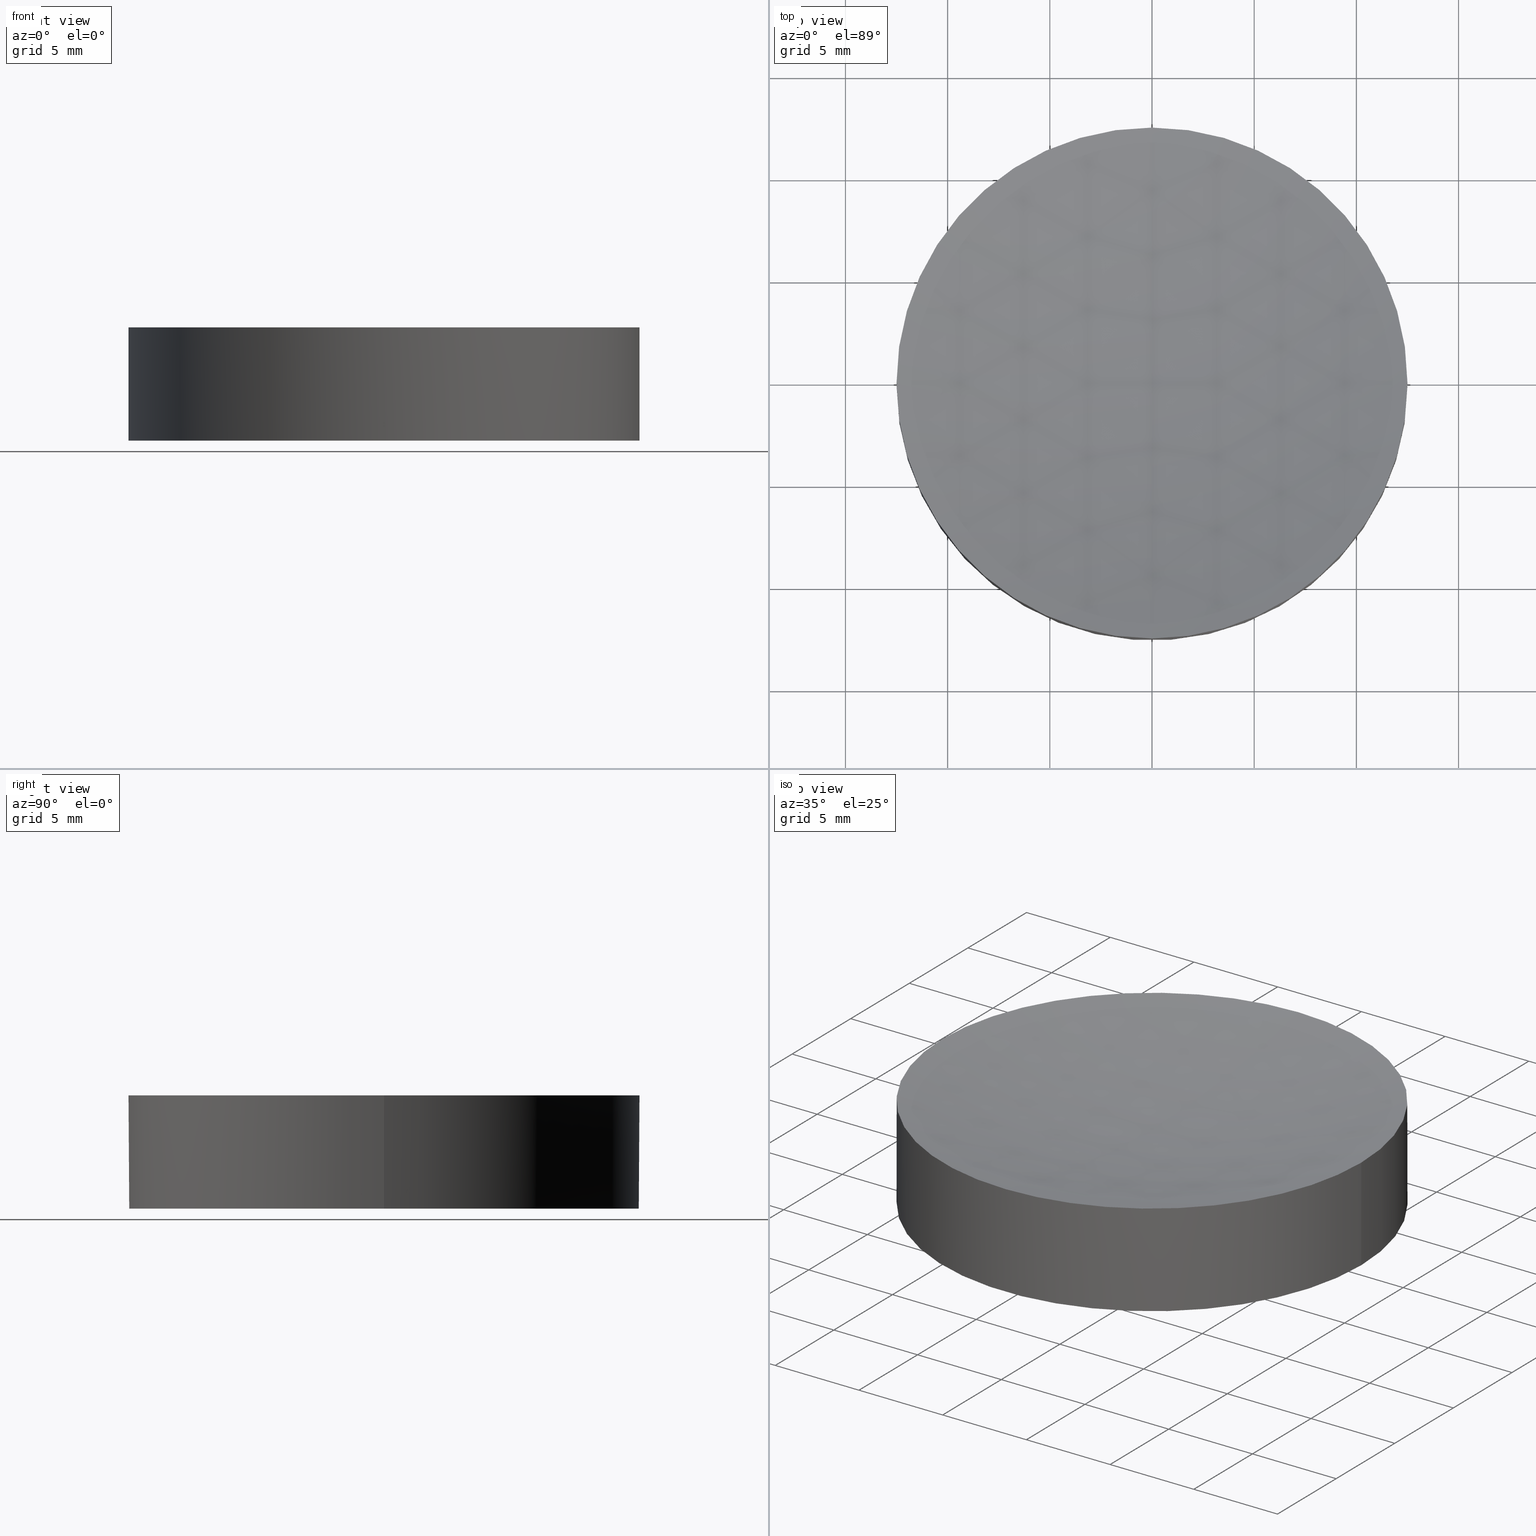
[diagram: canonical four-view strip — front | top / right | iso, engineering-drawing reading convention]
A machine part, canonical four-view strip (front | top / right | iso — engineering-drawing reading convention). The complete STEP part file that produces these views, byte-faithful:
ISO-10303-21;
HEADER;
FILE_DESCRIPTION (( 'STEP AP214' ),
    '1' );
FILE_NAME ('19069-E0W.STEP',
    '2009-12-21T17:09:12',
    ( ' ' ),
    ( ' ' ),
    'SwSTEP 2.0',
    'SolidWorks 2009',
    '' );
FILE_SCHEMA (( 'AUTOMOTIVE_DESIGN' ));
ENDSEC;

DATA;
#1 = AXIS2_PLACEMENT_3D ( 'NONE', #5, #7, #8 ) ;
#2 = CIRCLE ( 'NONE', #3, 12.50000000000000000 ) ;
#3 = AXIS2_PLACEMENT_3D ( 'NONE', #10, #6, #9 ) ;
#4 = CIRCLE ( 'NONE', #1, 51.50000000000000700 ) ;
#5 = CARTESIAN_POINT ( 'NONE',  ( 0.0000000000000000000, 0.0000000000000000000, 52.72999199359360000 ) ) ;
#6 = DIRECTION ( 'NONE',  ( -0.0000000000000000000, -0.0000000000000000000, 1.000000000000000000 ) ) ;
#7 = DIRECTION ( 'NONE',  ( 1.000000000000000000, 0.0000000000000000000, 0.0000000000000000000 ) ) ;
#8 = DIRECTION ( 'NONE',  ( 0.0000000000000000000, 0.0000000000000000000, -1.000000000000000000 ) ) ;
#9 = DIRECTION ( 'NONE',  ( 1.000000000000000000, 0.0000000000000000000, 0.0000000000000000000 ) ) ;
#10 = CARTESIAN_POINT ( 'NONE',  ( 0.0000000000000000000, 0.0000000000000000000, 2.770008006406406800 ) ) ;
#11 = CARTESIAN_POINT ( 'NONE',  ( 0.0000000000000000000, 3.153361361092621800E-015, 1.229991993593595900 ) ) ;
#12 = CARTESIAN_POINT ( 'NONE',  ( -1.530757942277970800E-015, -12.49999999999999300, 2.770008006406407200 ) ) ;
#13 = DIRECTION ( 'NONE',  ( -1.000000000000000000, 1.224606353822377300E-016, 0.0000000000000000000 ) ) ;
#14 = AXIS2_PLACEMENT_3D ( 'NONE', #16, #17, #18 ) ;
#15 = DIRECTION ( 'NONE',  ( -1.224606353822377300E-016, -1.000000000000000000, 0.0000000000000000000 ) ) ;
#16 = CARTESIAN_POINT ( 'NONE',  ( 0.0000000000000000000, 0.0000000000000000000, -2.770008006406406800 ) ) ;
#17 = DIRECTION ( 'NONE',  ( -0.0000000000000000000, -0.0000000000000000000, 1.000000000000000000 ) ) ;
#18 = DIRECTION ( 'NONE',  ( 1.000000000000000000, 0.0000000000000000000, 0.0000000000000000000 ) ) ;
#19 = SURFACE_STYLE_USAGE ( .BOTH. , #20 ) ;
#20 = SURFACE_SIDE_STYLE ('',( #30 ) ) ;
#21 = STYLED_ITEM ( 'NONE', ( #22 ), #230 ) ;
#22 = PRESENTATION_STYLE_ASSIGNMENT (( #19 ) ) ;
#23 = CIRCLE ( 'NONE', #14, 12.50000000000000000 ) ;
#24 = PRESENTATION_LAYER_ASSIGNMENT (  '', '', ( #21 ) ) ;
#25 = MECHANICAL_DESIGN_GEOMETRIC_PRESENTATION_REPRESENTATION (  '', ( #21 ), #35 ) ;
#26 =( LENGTH_UNIT ( ) NAMED_UNIT ( * ) SI_UNIT ( .MILLI., .METRE. ) );
#27 =( NAMED_UNIT ( * ) PLANE_ANGLE_UNIT ( ) SI_UNIT ( $, .RADIAN. ) );
#28 = FILL_AREA_STYLE_COLOUR ( '', #32 ) ;
#29 = FILL_AREA_STYLE ('',( #28 ) ) ;
#30 = SURFACE_STYLE_FILL_AREA ( #29 ) ;
#31 =( NAMED_UNIT ( * ) SI_UNIT ( $, .STERADIAN. ) SOLID_ANGLE_UNIT ( ) );
#32 = COLOUR_RGB ( '',0.9568627450980391500, 0.9490196078431372100, 0.9607843137254902200 ) ;
#33 = FACE_OUTER_BOUND ( 'NONE', #249, .T. ) ;
#34 = UNCERTAINTY_MEASURE_WITH_UNIT (LENGTH_MEASURE( 1.000000000000000100E-005 ), #26, 'distance_accuracy_value', 'NONE');
#35 =( GEOMETRIC_REPRESENTATION_CONTEXT ( 3 ) GLOBAL_UNCERTAINTY_ASSIGNED_CONTEXT ( ( #34 ) ) GLOBAL_UNIT_ASSIGNED_CONTEXT ( ( #26, #27, #31 ) ) REPRESENTATION_CONTEXT ( 'NONE', 'WORKASPACE' ) );
#36 = DIRECTION ( 'NONE',  ( -0.0000000000000000000, -0.0000000000000000000, 1.000000000000000000 ) ) ;
#37 = CARTESIAN_POINT ( 'NONE',  ( 0.0000000000000000000, 0.0000000000000000000, 52.72999199359360000 ) ) ;
#38 = AXIS2_PLACEMENT_3D ( 'NONE', #37, #13, #15 ) ;
#39 = CIRCLE ( 'NONE', #38, 51.50000000000000700 ) ;
#40 = CARTESIAN_POINT ( 'NONE',  ( 12.50000000000000000, 0.0000000000000000000, 8.247145264022918800 ) ) ;
#41 = VECTOR ( 'NONE', #36, 1000.000000000000000 ) ;
#42 = LINE ( 'NONE', #40, #41 ) ;
#43 = UNCERTAINTY_MEASURE_WITH_UNIT (LENGTH_MEASURE( 1.000000000000000100E-005 ), #86, 'distance_accuracy_value', 'NONE');
#44 =( GEOMETRIC_REPRESENTATION_CONTEXT ( 3 ) GLOBAL_UNCERTAINTY_ASSIGNED_CONTEXT ( ( #210 ) ) GLOBAL_UNIT_ASSIGNED_CONTEXT ( ( #180, #179, #211 ) ) REPRESENTATION_CONTEXT ( 'NONE', 'WORKASPACE' ) );
#45 = AXIS2_PLACEMENT_3D ( 'NONE', #64, #47, #49 ) ;
#46 = PRODUCT_DEFINITION_FORMATION_WITH_SPECIFIED_SOURCE ( 'ANY', '', #61, .NOT_KNOWN. ) ;
#47 = DIRECTION ( 'NONE',  ( -1.000000000000000000, 0.0000000000000000000, 0.0000000000000000000 ) ) ;
#48 = PRODUCT_RELATED_PRODUCT_CATEGORY ( 'part', '', ( #61 ) ) ;
#49 = DIRECTION ( 'NONE',  ( 0.0000000000000000000, 1.000000000000000000, 0.0000000000000000000 ) ) ;
#50 = PRODUCT_DEFINITION ( 'UNKNOWN', '', #46, #63 ) ;
#51 = SPHERICAL_SURFACE ( 'NONE', #45, 51.50000000000000700 ) ;
#52 = CARTESIAN_POINT ( 'NONE',  ( 0.0000000000000000000, 0.0000000000000000000, 2.770008006406406800 ) ) ;
#53 = APPLICATION_CONTEXT ( 'automotive_design' ) ;
#54 = APPLICATION_CONTEXT ( 'automotive_design' ) ;
#55 = APPLICATION_PROTOCOL_DEFINITION ( 'draft international standard', 'automotive_design', 1998, #54 ) ;
#56 =( GEOMETRIC_REPRESENTATION_CONTEXT ( 3 ) GLOBAL_UNCERTAINTY_ASSIGNED_CONTEXT ( ( #43 ) ) GLOBAL_UNIT_ASSIGNED_CONTEXT ( ( #86, #85, #84 ) ) REPRESENTATION_CONTEXT ( 'NONE', 'WORKASPACE' ) );
#57 = APPLICATION_PROTOCOL_DEFINITION ( 'draft international standard', 'automotive_design', 1998, #53 ) ;
#58 = DIRECTION ( 'NONE',  ( 1.000000000000000000, 0.0000000000000000000, 0.0000000000000000000 ) ) ;
#59 = DIRECTION ( 'NONE',  ( -0.0000000000000000000, -0.0000000000000000000, 1.000000000000000000 ) ) ;
#60 = CIRCLE ( 'NONE', #65, 12.50000000000000000 ) ;
#61 = PRODUCT ( '19069-E0W', '19069-E0W', '', ( #62 ) ) ;
#62 = PRODUCT_CONTEXT ( 'NONE', #53, 'mechanical' ) ;
#63 = PRODUCT_DEFINITION_CONTEXT ( 'detailed design', #54, 'design' ) ;
#64 = CARTESIAN_POINT ( 'NONE',  ( 0.0000000000000000000, 0.0000000000000000000, 52.72999199359360000 ) ) ;
#65 = AXIS2_PLACEMENT_3D ( 'NONE', #52, #59, #58 ) ;
#66 = FILL_AREA_STYLE ('',( #116 ) ) ;
#67 = STYLED_ITEM ( 'NONE', ( #68 ), #259 ) ;
#68 = PRESENTATION_STYLE_ASSIGNMENT (( #69 ) ) ;
#69 = SURFACE_STYLE_USAGE ( .BOTH. , #70 ) ;
#70 = SURFACE_SIDE_STYLE ('',( #71 ) ) ;
#71 = SURFACE_STYLE_FILL_AREA ( #72 ) ;
#72 = FILL_AREA_STYLE ('',( #73 ) ) ;
#73 = FILL_AREA_STYLE_COLOUR ( '', #113 ) ;
#74 = STYLED_ITEM ( 'NONE', ( #75 ), #255 ) ;
#75 = PRESENTATION_STYLE_ASSIGNMENT (( #98 ) ) ;
#76 = COLOUR_RGB ( '',0.9568627450980391500, 0.9490196078431372100, 0.9607843137254902200 ) ;
#77 =( LENGTH_UNIT ( ) NAMED_UNIT ( * ) SI_UNIT ( .MILLI., .METRE. ) );
#78 = CYLINDRICAL_SURFACE ( 'NONE', #119, 12.50000000000000000 ) ;
#79 = PRESENTATION_LAYER_ASSIGNMENT (  '', '', ( #95 ) ) ;
#80 = SURFACE_STYLE_USAGE ( .BOTH. , #89 ) ;
#81 = AXIS2_PLACEMENT_3D ( 'NONE', #104, #117, #109 ) ;
#82 =( NAMED_UNIT ( * ) PLANE_ANGLE_UNIT ( ) SI_UNIT ( $, .RADIAN. ) );
#83 =( GEOMETRIC_REPRESENTATION_CONTEXT ( 3 ) GLOBAL_UNCERTAINTY_ASSIGNED_CONTEXT ( ( #93 ) ) GLOBAL_UNIT_ASSIGNED_CONTEXT ( ( #96, #115, #107 ) ) REPRESENTATION_CONTEXT ( 'NONE', 'WORKASPACE' ) );
#84 =( NAMED_UNIT ( * ) SI_UNIT ( $, .STERADIAN. ) SOLID_ANGLE_UNIT ( ) );
#85 =( NAMED_UNIT ( * ) PLANE_ANGLE_UNIT ( ) SI_UNIT ( $, .RADIAN. ) );
#86 =( LENGTH_UNIT ( ) NAMED_UNIT ( * ) SI_UNIT ( .MILLI., .METRE. ) );
#87 = MECHANICAL_DESIGN_GEOMETRIC_PRESENTATION_REPRESENTATION (  '', ( #67 ), #56 ) ;
#88 = PRESENTATION_LAYER_ASSIGNMENT (  '', '', ( #67 ) ) ;
#89 = SURFACE_SIDE_STYLE ('',( #106 ) ) ;
#90 = MECHANICAL_DESIGN_GEOMETRIC_PRESENTATION_REPRESENTATION (  '', ( #74 ), #94 ) ;
#91 = PRESENTATION_LAYER_ASSIGNMENT (  '', '', ( #74 ) ) ;
#92 = DIRECTION ( 'NONE',  ( -0.0000000000000000000, -0.0000000000000000000, 1.000000000000000000 ) ) ;
#93 = UNCERTAINTY_MEASURE_WITH_UNIT (LENGTH_MEASURE( 1.000000000000000100E-005 ), #96, 'distance_accuracy_value', 'NONE');
#94 =( GEOMETRIC_REPRESENTATION_CONTEXT ( 3 ) GLOBAL_UNCERTAINTY_ASSIGNED_CONTEXT ( ( #103 ) ) GLOBAL_UNIT_ASSIGNED_CONTEXT ( ( #77, #82, #102 ) ) REPRESENTATION_CONTEXT ( 'NONE', 'WORKASPACE' ) );
#95 = STYLED_ITEM ( 'NONE', ( #105 ), #253 ) ;
#96 =( LENGTH_UNIT ( ) NAMED_UNIT ( * ) SI_UNIT ( .MILLI., .METRE. ) );
#97 = COLOUR_RGB ( '',0.9568627450980391500, 0.9490196078431372100, 0.9607843137254902200 ) ;
#98 = SURFACE_STYLE_USAGE ( .BOTH. , #99 ) ;
#99 = SURFACE_SIDE_STYLE ('',( #121 ) ) ;
#100 = FACE_OUTER_BOUND ( 'NONE', #232, .T. ) ;
#101 = PLANE ( 'NONE',  #81 ) ;
#102 =( NAMED_UNIT ( * ) SI_UNIT ( $, .STERADIAN. ) SOLID_ANGLE_UNIT ( ) );
#103 = UNCERTAINTY_MEASURE_WITH_UNIT (LENGTH_MEASURE( 1.000000000000000100E-005 ), #77, 'distance_accuracy_value', 'NONE');
#104 = CARTESIAN_POINT ( 'NONE',  ( 0.0000000000000000000, 7.347880794884119700E-016, -2.770008006406406800 ) ) ;
#105 = PRESENTATION_STYLE_ASSIGNMENT (( #80 ) ) ;
#106 = SURFACE_STYLE_FILL_AREA ( #66 ) ;
#107 =( NAMED_UNIT ( * ) SI_UNIT ( $, .STERADIAN. ) SOLID_ANGLE_UNIT ( ) );
#108 = FILL_AREA_STYLE ('',( #120 ) ) ;
#109 = DIRECTION ( 'NONE',  ( 1.000000000000000000, 0.0000000000000000000, 0.0000000000000000000 ) ) ;
#110 = MECHANICAL_DESIGN_GEOMETRIC_PRESENTATION_REPRESENTATION (  '', ( #95 ), #83 ) ;
#111 = CARTESIAN_POINT ( 'NONE',  ( 12.50000000000000000, 0.0000000000000000000, -2.770008006406406800 ) ) ;
#112 = DIRECTION ( 'NONE',  ( 1.000000000000000000, 0.0000000000000000000, 0.0000000000000000000 ) ) ;
#113 = COLOUR_RGB ( '',0.9568627450980391500, 0.9490196078431372100, 0.9607843137254902200 ) ;
#114 = FACE_OUTER_BOUND ( 'NONE', #219, .T. ) ;
#115 =( NAMED_UNIT ( * ) PLANE_ANGLE_UNIT ( ) SI_UNIT ( $, .RADIAN. ) );
#116 = FILL_AREA_STYLE_COLOUR ( '', #97 ) ;
#117 = DIRECTION ( 'NONE',  ( 0.0000000000000000000, -0.0000000000000000000, 1.000000000000000000 ) ) ;
#118 = CARTESIAN_POINT ( 'NONE',  ( 0.0000000000000000000, 0.0000000000000000000, 8.247145264022918800 ) ) ;
#119 = AXIS2_PLACEMENT_3D ( 'NONE', #118, #92, #112 ) ;
#120 = FILL_AREA_STYLE_COLOUR ( '', #76 ) ;
#121 = SURFACE_STYLE_FILL_AREA ( #108 ) ;
#122 = FACE_OUTER_BOUND ( 'NONE', #247, .T. ) ;
#123 =( NAMED_UNIT ( * ) PLANE_ANGLE_UNIT ( ) SI_UNIT ( $, .RADIAN. ) );
#124 =( LENGTH_UNIT ( ) NAMED_UNIT ( * ) SI_UNIT ( .MILLI., .METRE. ) );
#125 =( GEOMETRIC_REPRESENTATION_CONTEXT ( 3 ) GLOBAL_UNCERTAINTY_ASSIGNED_CONTEXT ( ( #139 ) ) GLOBAL_UNIT_ASSIGNED_CONTEXT ( ( #137, #127, #147 ) ) REPRESENTATION_CONTEXT ( 'NONE', 'WORKASPACE' ) );
#126 = DIRECTION ( 'NONE',  ( 0.0000000000000000000, 1.000000000000000000, 0.0000000000000000000 ) ) ;
#127 =( NAMED_UNIT ( * ) PLANE_ANGLE_UNIT ( ) SI_UNIT ( $, .RADIAN. ) );
#128 = UNCERTAINTY_MEASURE_WITH_UNIT (LENGTH_MEASURE( 1.000000000000000100E-005 ), #124, 'distance_accuracy_value', 'NONE');
#129 = SURFACE_STYLE_USAGE ( .BOTH. , #136 ) ;
#130 = AXIS2_PLACEMENT_3D ( 'NONE', #131, #138, #126 ) ;
#131 = CARTESIAN_POINT ( 'NONE',  ( 0.0000000000000000000, 0.0000000000000000000, 52.72999199359360000 ) ) ;
#132 = PRESENTATION_STYLE_ASSIGNMENT (( #129 ) ) ;
#133 =( NAMED_UNIT ( * ) SI_UNIT ( $, .STERADIAN. ) SOLID_ANGLE_UNIT ( ) );
#134 = ADVANCED_BREP_SHAPE_REPRESENTATION ( '19069-E0W', ( #234, #152 ), #125 ) ;
#135 = SPHERICAL_SURFACE ( 'NONE', #130, 51.50000000000000700 ) ;
#136 = SURFACE_SIDE_STYLE ('',( #149 ) ) ;
#137 =( LENGTH_UNIT ( ) NAMED_UNIT ( * ) SI_UNIT ( .MILLI., .METRE. ) );
#138 = DIRECTION ( 'NONE',  ( -1.000000000000000000, 0.0000000000000000000, 0.0000000000000000000 ) ) ;
#139 = UNCERTAINTY_MEASURE_WITH_UNIT (LENGTH_MEASURE( 1.000000000000000100E-005 ), #137, 'distance_accuracy_value', 'NONE');
#140 = CARTESIAN_POINT ( 'NONE',  ( 12.50000000000000000, 0.0000000000000000000, 2.770008006406406800 ) ) ;
#141 = COLOUR_RGB ( '',0.7960784313725489700, 0.8235294117647058400, 0.9372549019607843100 ) ;
#142 = FILL_AREA_STYLE_COLOUR ( '', #141 ) ;
#143 = STYLED_ITEM ( 'NONE', ( #132 ), #134 ) ;
#144 =( GEOMETRIC_REPRESENTATION_CONTEXT ( 3 ) GLOBAL_UNCERTAINTY_ASSIGNED_CONTEXT ( ( #128 ) ) GLOBAL_UNIT_ASSIGNED_CONTEXT ( ( #124, #123, #133 ) ) REPRESENTATION_CONTEXT ( 'NONE', 'WORKASPACE' ) );
#145 = MECHANICAL_DESIGN_GEOMETRIC_PRESENTATION_REPRESENTATION (  '', ( #143 ), #144 ) ;
#146 = PRESENTATION_LAYER_ASSIGNMENT (  '', '', ( #143 ) ) ;
#147 =( NAMED_UNIT ( * ) SI_UNIT ( $, .STERADIAN. ) SOLID_ANGLE_UNIT ( ) );
#148 = FILL_AREA_STYLE ('',( #142 ) ) ;
#149 = SURFACE_STYLE_FILL_AREA ( #148 ) ;
#150 = DIRECTION ( 'NONE',  ( 1.000000000000000000, 0.0000000000000000000, 0.0000000000000000000 ) ) ;
#151 = DIRECTION ( 'NONE',  ( 0.0000000000000000000, 0.0000000000000000000, 1.000000000000000000 ) ) ;
#152 = AXIS2_PLACEMENT_3D ( 'NONE', #155, #151, #150 ) ;
#153 = SHAPE_DEFINITION_REPRESENTATION ( #154, #134 ) ;
#154 = PRODUCT_DEFINITION_SHAPE ( 'NONE', 'NONE',  #50 ) ;
#155 = CARTESIAN_POINT ( 'NONE',  ( 0.0000000000000000000, 0.0000000000000000000, 0.0000000000000000000 ) ) ;
#156 = FACE_OUTER_BOUND ( 'NONE', #254, .T. ) ;
#157 = VECTOR ( 'NONE', #182, 1000.000000000000000 ) ;
#158 =( LENGTH_UNIT ( ) NAMED_UNIT ( * ) SI_UNIT ( .MILLI., .METRE. ) );
#159 = CARTESIAN_POINT ( 'NONE',  ( -12.50000000000000000, 1.530757942277971600E-015, 2.770008006406406800 ) ) ;
#160 = DIRECTION ( 'NONE',  ( 1.000000000000000000, 0.0000000000000000000, 0.0000000000000000000 ) ) ;
#161 = FILL_AREA_STYLE_COLOUR ( '', #178 ) ;
#162 = AXIS2_PLACEMENT_3D ( 'NONE', #194, #167, #160 ) ;
#163 = DIRECTION ( 'NONE',  ( 1.000000000000000000, 0.0000000000000000000, 0.0000000000000000000 ) ) ;
#164 = DIRECTION ( 'NONE',  ( -0.0000000000000000000, -0.0000000000000000000, 1.000000000000000000 ) ) ;
#165 = AXIS2_PLACEMENT_3D ( 'NONE', #176, #164, #163 ) ;
#166 = CIRCLE ( 'NONE', #165, 12.50000000000000000 ) ;
#167 = DIRECTION ( 'NONE',  ( -0.0000000000000000000, -0.0000000000000000000, 1.000000000000000000 ) ) ;
#168 = MECHANICAL_DESIGN_GEOMETRIC_PRESENTATION_REPRESENTATION (  '', ( #170 ), #44 ) ;
#169 = PRESENTATION_LAYER_ASSIGNMENT (  '', '', ( #170 ) ) ;
#170 = STYLED_ITEM ( 'NONE', ( #171 ), #250 ) ;
#171 = PRESENTATION_STYLE_ASSIGNMENT (( #172 ) ) ;
#172 = SURFACE_STYLE_USAGE ( .BOTH. , #173 ) ;
#173 = SURFACE_SIDE_STYLE ('',( #174 ) ) ;
#174 = SURFACE_STYLE_FILL_AREA ( #175 ) ;
#175 = FILL_AREA_STYLE ('',( #185 ) ) ;
#176 = CARTESIAN_POINT ( 'NONE',  ( 0.0000000000000000000, 0.0000000000000000000, 2.770008006406406800 ) ) ;
#177 = CARTESIAN_POINT ( 'NONE',  ( 0.0000000000000000000, 0.0000000000000000000, -2.770008006406406800 ) ) ;
#178 = COLOUR_RGB ( '',0.7960784313725489700, 0.8235294117647058400, 0.9372549019607843100 ) ;
#179 =( NAMED_UNIT ( * ) PLANE_ANGLE_UNIT ( ) SI_UNIT ( $, .RADIAN. ) );
#180 =( LENGTH_UNIT ( ) NAMED_UNIT ( * ) SI_UNIT ( .MILLI., .METRE. ) );
#181 =( NAMED_UNIT ( * ) PLANE_ANGLE_UNIT ( ) SI_UNIT ( $, .RADIAN. ) );
#182 = DIRECTION ( 'NONE',  ( -0.0000000000000000000, -0.0000000000000000000, 1.000000000000000000 ) ) ;
#183 = CARTESIAN_POINT ( 'NONE',  ( -12.50000000000000000, 1.530757942277971600E-015, 8.247145264022918800 ) ) ;
#184 = LINE ( 'NONE', #183, #157 ) ;
#185 = FILL_AREA_STYLE_COLOUR ( '', #186 ) ;
#186 = COLOUR_RGB ( '',0.9568627450980391500, 0.9490196078431372100, 0.9607843137254902200 ) ;
#187 = DIRECTION ( 'NONE',  ( 1.000000000000000000, 0.0000000000000000000, 0.0000000000000000000 ) ) ;
#188 = DIRECTION ( 'NONE',  ( -0.0000000000000000000, -0.0000000000000000000, 1.000000000000000000 ) ) ;
#189 = CARTESIAN_POINT ( 'NONE',  ( 0.0000000000000000000, 0.0000000000000000000, 2.770008006406406800 ) ) ;
#190 = AXIS2_PLACEMENT_3D ( 'NONE', #189, #188, #187 ) ;
#191 = CIRCLE ( 'NONE', #190, 12.50000000000000000 ) ;
#192 = UNCERTAINTY_MEASURE_WITH_UNIT (LENGTH_MEASURE( 1.000000000000000100E-005 ), #158, 'distance_accuracy_value', 'NONE');
#193 =( NAMED_UNIT ( * ) SI_UNIT ( $, .STERADIAN. ) SOLID_ANGLE_UNIT ( ) );
#194 = CARTESIAN_POINT ( 'NONE',  ( 0.0000000000000000000, 0.0000000000000000000, 8.247145264022918800 ) ) ;
#195 = STYLED_ITEM ( 'NONE', ( #196 ), #234 ) ;
#196 = PRESENTATION_STYLE_ASSIGNMENT (( #197 ) ) ;
#197 = SURFACE_STYLE_USAGE ( .BOTH. , #206 ) ;
#198 = DIRECTION ( 'NONE',  ( 1.000000000000000000, 0.0000000000000000000, 0.0000000000000000000 ) ) ;
#199 = DIRECTION ( 'NONE',  ( -0.0000000000000000000, -0.0000000000000000000, 1.000000000000000000 ) ) ;
#200 = AXIS2_PLACEMENT_3D ( 'NONE', #177, #199, #198 ) ;
#201 = CIRCLE ( 'NONE', #200, 12.50000000000000000 ) ;
#202 = CARTESIAN_POINT ( 'NONE',  ( 0.0000000000000000000, 12.49999999999999300, 2.770008006406407200 ) ) ;
#203 = MECHANICAL_DESIGN_GEOMETRIC_PRESENTATION_REPRESENTATION (  '', ( #195 ), #212 ) ;
#204 = PRESENTATION_LAYER_ASSIGNMENT (  '', '', ( #195 ) ) ;
#205 = CARTESIAN_POINT ( 'NONE',  ( -12.50000000000000000, 1.530757942277971600E-015, -2.770008006406406800 ) ) ;
#206 = SURFACE_SIDE_STYLE ('',( #207 ) ) ;
#207 = SURFACE_STYLE_FILL_AREA ( #208 ) ;
#208 = FILL_AREA_STYLE ('',( #161 ) ) ;
#209 = CYLINDRICAL_SURFACE ( 'NONE', #162, 12.50000000000000000 ) ;
#210 = UNCERTAINTY_MEASURE_WITH_UNIT (LENGTH_MEASURE( 1.000000000000000100E-005 ), #180, 'distance_accuracy_value', 'NONE');
#211 =( NAMED_UNIT ( * ) SI_UNIT ( $, .STERADIAN. ) SOLID_ANGLE_UNIT ( ) );
#212 =( GEOMETRIC_REPRESENTATION_CONTEXT ( 3 ) GLOBAL_UNCERTAINTY_ASSIGNED_CONTEXT ( ( #192 ) ) GLOBAL_UNIT_ASSIGNED_CONTEXT ( ( #158, #181, #193 ) ) REPRESENTATION_CONTEXT ( 'NONE', 'WORKASPACE' ) );
#213 = ORIENTED_EDGE ( 'NONE', *, *, #221, .T. ) ;
#214 = ORIENTED_EDGE ( 'NONE', *, *, #237, .T. ) ;
#215 = EDGE_CURVE ( 'NONE', #233, #231, #2, .T. ) ;
#216 = VERTEX_POINT ( 'NONE', #12 ) ;
#217 = VERTEX_POINT ( 'NONE', #11 ) ;
#218 = ORIENTED_EDGE ( 'NONE', *, *, #220, .F. ) ;
#219 = EDGE_LOOP ( 'NONE', ( #218, #258, #248, #244 ) ) ;
#220 = EDGE_CURVE ( 'NONE', #217, #233, #4, .T. ) ;
#221 = EDGE_CURVE ( 'NONE', #256, #260, #42, .T. ) ;
#222 = EDGE_CURVE ( 'NONE', #217, #216, #39, .T. ) ;
#223 = ORIENTED_EDGE ( 'NONE', *, *, #229, .T. ) ;
#224 = CLOSED_SHELL ( 'NONE', ( #255, #259, #250, #253, #230 ) ) ;
#225 = ORIENTED_EDGE ( 'NONE', *, *, #246, .F. ) ;
#226 = ORIENTED_EDGE ( 'NONE', *, *, #252, .F. ) ;
#227 = ORIENTED_EDGE ( 'NONE', *, *, #240, .F. ) ;
#228 = ORIENTED_EDGE ( 'NONE', *, *, #229, .F. ) ;
#229 = EDGE_CURVE ( 'NONE', #238, #256, #23, .T. ) ;
#230 = ADVANCED_FACE ( 'NONE', ( #33 ), #209, .T. ) ;
#231 = VERTEX_POINT ( 'NONE', #159 ) ;
#232 = EDGE_LOOP ( 'NONE', ( #214, #239, #235, #261, #257 ) ) ;
#233 = VERTEX_POINT ( 'NONE', #202 ) ;
#234 = MANIFOLD_SOLID_BREP ( 'NONE', #224 ) ;
#235 = ORIENTED_EDGE ( 'NONE', *, *, #215, .F. ) ;
#236 = EDGE_CURVE ( 'NONE', #260, #233, #166, .T. ) ;
#237 = EDGE_CURVE ( 'NONE', #256, #238, #201, .T. ) ;
#238 = VERTEX_POINT ( 'NONE', #205 ) ;
#239 = ORIENTED_EDGE ( 'NONE', *, *, #240, .T. ) ;
#240 = EDGE_CURVE ( 'NONE', #238, #231, #184, .T. ) ;
#241 = ORIENTED_EDGE ( 'NONE', *, *, #220, .T. ) ;
#242 = ORIENTED_EDGE ( 'NONE', *, *, #215, .T. ) ;
#243 = ORIENTED_EDGE ( 'NONE', *, *, #222, .F. ) ;
#244 = ORIENTED_EDGE ( 'NONE', *, *, #236, .T. ) ;
#245 = ORIENTED_EDGE ( 'NONE', *, *, #237, .F. ) ;
#246 = EDGE_CURVE ( 'NONE', #216, #260, #191, .T. ) ;
#247 = EDGE_LOOP ( 'NONE', ( #245, #228 ) ) ;
#248 = ORIENTED_EDGE ( 'NONE', *, *, #246, .T. ) ;
#249 = EDGE_LOOP ( 'NONE', ( #227, #223, #213, #225, #226 ) ) ;
#250 = ADVANCED_FACE ( 'NONE', ( #156 ), #51, .F. ) ;
#251 = ORIENTED_EDGE ( 'NONE', *, *, #252, .T. ) ;
#252 = EDGE_CURVE ( 'NONE', #231, #216, #60, .T. ) ;
#253 = ADVANCED_FACE ( 'NONE', ( #122 ), #101, .F. ) ;
#254 = EDGE_LOOP ( 'NONE', ( #243, #241, #242, #251 ) ) ;
#255 = ADVANCED_FACE ( 'NONE', ( #100 ), #78, .T. ) ;
#256 = VERTEX_POINT ( 'NONE', #111 ) ;
#257 = ORIENTED_EDGE ( 'NONE', *, *, #221, .F. ) ;
#258 = ORIENTED_EDGE ( 'NONE', *, *, #222, .T. ) ;
#259 = ADVANCED_FACE ( 'NONE', ( #114 ), #135, .F. ) ;
#260 = VERTEX_POINT ( 'NONE', #140 ) ;
#261 = ORIENTED_EDGE ( 'NONE', *, *, #236, .F. ) ;
ENDSEC;
END-ISO-10303-21;
